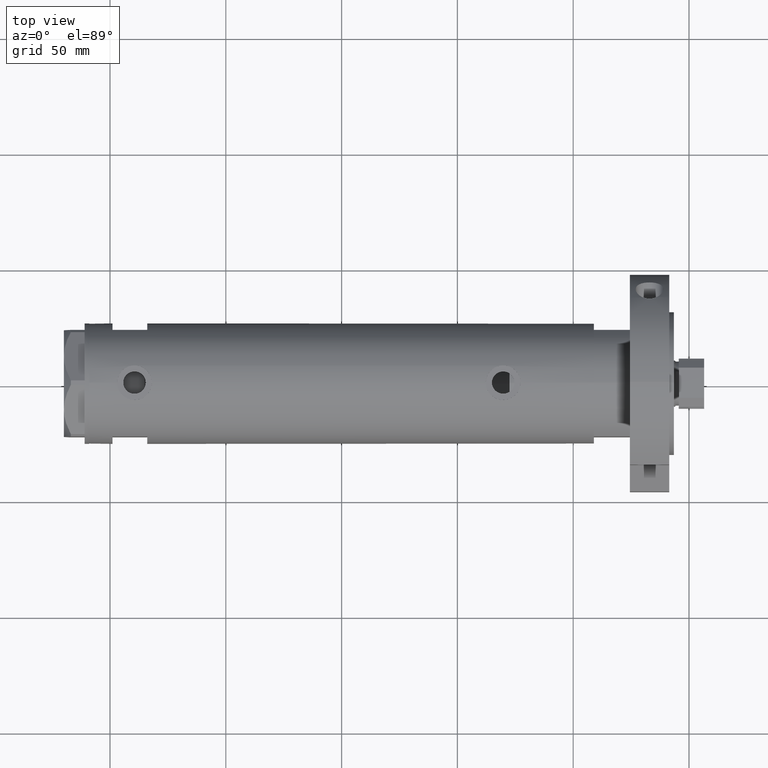
[diagram: clean part render]
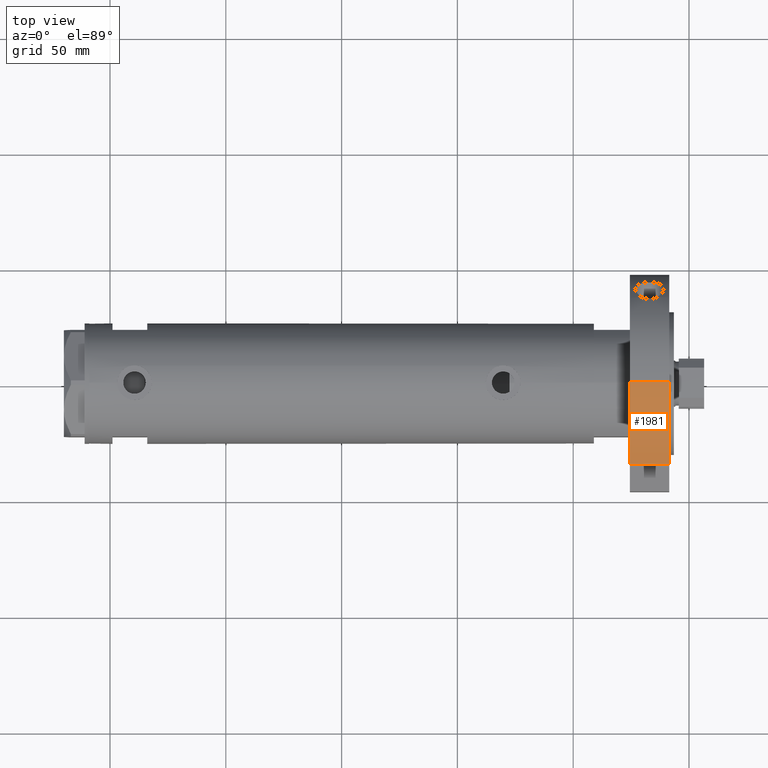
[diagram: same view with one face highlighted and labeled with its STEP entity id]
A machine part, top view. The second image highlights one B-rep face of the part: STEP entity #1981.
In plain terms, the highlighted cylindrical surface (partial cylindrical patch) has radius 47 mm, axis along (-1, -0, 0).
Its self-contained STEP definition (entity closure, byte-faithful):
#42 = EDGE_CURVE ( 'NONE', #6327, #2659, #2620, .T. ) ;
#209 = ORIENTED_EDGE ( 'NONE', *, *, #7387, .T. ) ;
#372 = CARTESIAN_POINT ( 'NONE',  ( 0.000000000000000000, 0.000000000000000000, 17.00000000000000000 ) ) ;
#648 = CARTESIAN_POINT ( 'NONE',  ( 30.83217135699462830, 35.47361286101148892, 0.000000000000000000 ) ) ;
#997 = ORIENTED_EDGE ( 'NONE', *, *, #42, .T. ) ;
#1353 = DIRECTION ( 'NONE',  ( -0.000000000000000000, -0.000000000000000000, -1.000000000000000000 ) ) ;
#1437 = CARTESIAN_POINT ( 'NONE',  ( 0.000000000000000000, 0.000000000000000000, 17.00000000000000000 ) ) ;
#1577 = VECTOR ( 'NONE', #6843, 1000.000000000000000 ) ;
#1786 = DIRECTION ( 'NONE',  ( 1.000000000000000000, 0.000000000000000000, 0.000000000000000000 ) ) ;
#1981 = ADVANCED_FACE ( 'NONE', ( #7035 ), #3702, .T. ) ;
#1988 = CARTESIAN_POINT ( 'NONE',  ( 46.99999999999999289, 5.755839955992559063E-15, 0.000000000000000000 ) ) ;
#2205 = LINE ( 'NONE', #8318, #1577 ) ;
#2340 = DIRECTION ( 'NONE',  ( -0.000000000000000000, -0.000000000000000000, -1.000000000000000000 ) ) ;
#2620 = LINE ( 'NONE', #7357, #7953 ) ;
#2659 = VERTEX_POINT ( 'NONE', #1988 ) ;
#2705 = CIRCLE ( 'NONE', #3832, 46.99999999999999289 ) ;
#3605 = CARTESIAN_POINT ( 'NONE',  ( 46.99999999999999289, 5.755839955992559063E-15, 17.00000000000000000 ) ) ;
#3702 = CYLINDRICAL_SURFACE ( 'NONE', #6576, 46.99999999999999289 ) ;
#3825 = AXIS2_PLACEMENT_3D ( 'NONE', #1437, #8031, #6687 ) ;
#3832 = AXIS2_PLACEMENT_3D ( 'NONE', #7799, #6464, #1786 ) ;
#4595 = VERTEX_POINT ( 'NONE', #648 ) ;
#4684 = ORIENTED_EDGE ( 'NONE', *, *, #6296, .T. ) ;
#5674 = DIRECTION ( 'NONE',  ( -1.000000000000000000, 0.000000000000000000, 0.000000000000000000 ) ) ;
#6094 = VERTEX_POINT ( 'NONE', #7036 ) ;
#6296 = EDGE_CURVE ( 'NONE', #4595, #6094, #2205, .T. ) ;
#6327 = VERTEX_POINT ( 'NONE', #3605 ) ;
#6458 = ORIENTED_EDGE ( 'NONE', *, *, #6611, .F. ) ;
#6464 = DIRECTION ( 'NONE',  ( 0.000000000000000000, 0.000000000000000000, 1.000000000000000000 ) ) ;
#6576 = AXIS2_PLACEMENT_3D ( 'NONE', #372, #2340, #5674 ) ;
#6611 = EDGE_CURVE ( 'NONE', #6327, #6094, #6749, .T. ) ;
#6687 = DIRECTION ( 'NONE',  ( 1.000000000000000000, 0.000000000000000000, 0.000000000000000000 ) ) ;
#6749 = CIRCLE ( 'NONE', #3825, 46.99999999999999289 ) ;
#6843 = DIRECTION ( 'NONE',  ( -0.000000000000000000, -0.000000000000000000, 1.000000000000000000 ) ) ;
#7035 = FACE_OUTER_BOUND ( 'NONE', #8186, .T. ) ;
#7036 = CARTESIAN_POINT ( 'NONE',  ( 30.83217135699462830, 35.47361286101148892, 17.00000000000000000 ) ) ;
#7357 = CARTESIAN_POINT ( 'NONE',  ( 46.99999999999999289, 5.755839955992559063E-15, 17.00000000000000000 ) ) ;
#7387 = EDGE_CURVE ( 'NONE', #2659, #4595, #2705, .T. ) ;
#7799 = CARTESIAN_POINT ( 'NONE',  ( 0.000000000000000000, 0.000000000000000000, 0.000000000000000000 ) ) ;
#7953 = VECTOR ( 'NONE', #1353, 1000.000000000000000 ) ;
#8031 = DIRECTION ( 'NONE',  ( 0.000000000000000000, 0.000000000000000000, 1.000000000000000000 ) ) ;
#8186 = EDGE_LOOP ( 'NONE', ( #6458, #997, #209, #4684 ) ) ;
#8318 = CARTESIAN_POINT ( 'NONE',  ( 30.83217135699462830, 35.47361286101148892, 0.000000000000000000 ) ) ;